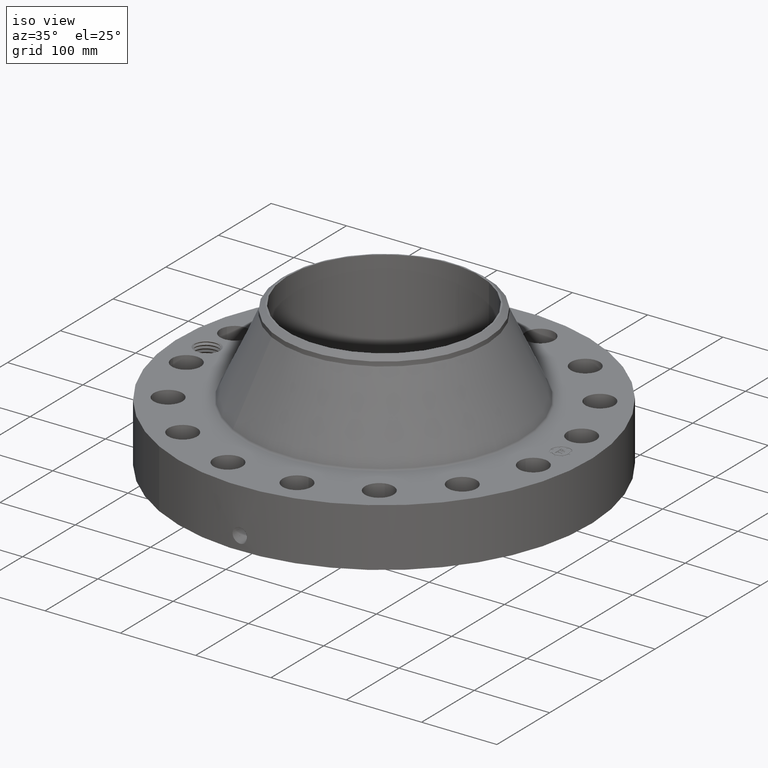
[diagram: clean part render]
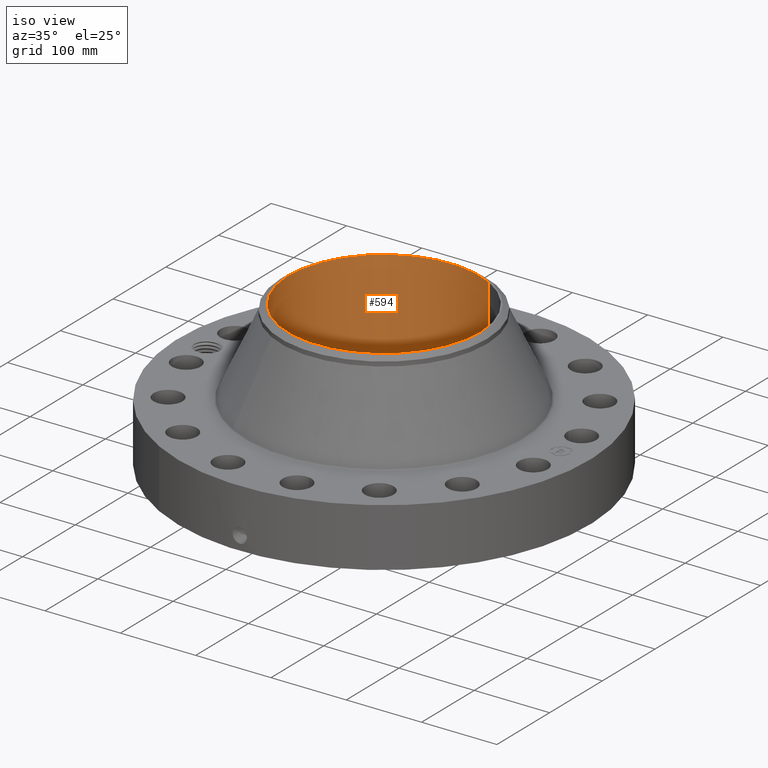
[diagram: same view with one face highlighted and labeled with its STEP entity id]
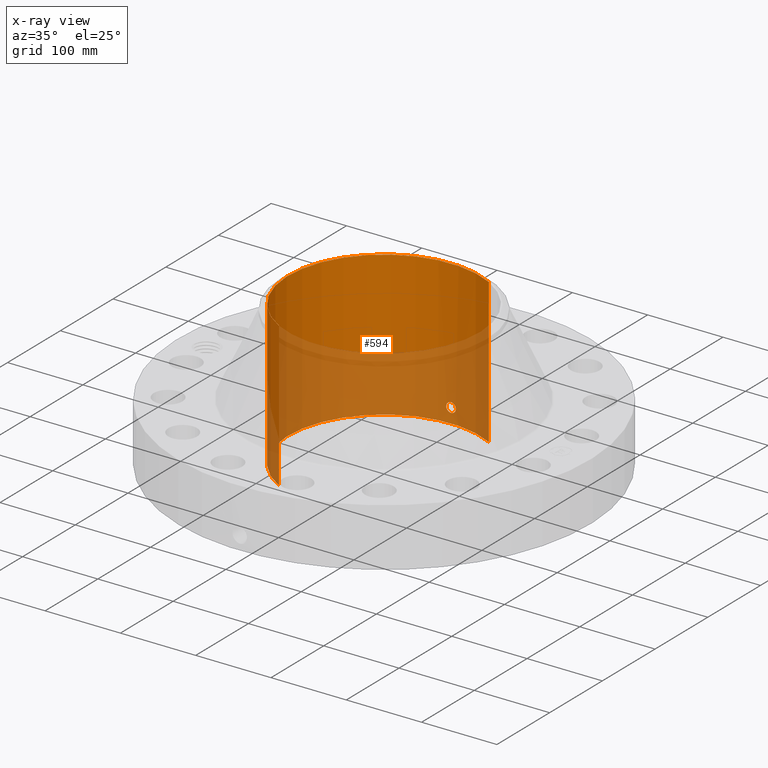
[diagram: x-ray of the same camera — body ghosted, the highlighted face saturated]
A machine part, iso view. The second image highlights one B-rep face of the part: STEP entity #594.
The next image is the same camera in x-ray: the body ghosted, the highlighted face saturated — about 47% of this face is hidden behind the body in this view.
In plain terms, the highlighted cylindrical surface (partial cylindrical patch) has radius 127.254 mm, axis along (0, 0, -1).
Its self-contained STEP definition (entity closure, byte-faithful):
#232=AXIS2_PLACEMENT_3D('Cylinder Axis2P3D',#229,#230,#231) ;
#533=AXIS2_PLACEMENT_3D('Circle Axis2P3D',#531,#532,$) ;
#543=AXIS2_PLACEMENT_3D('Circle Axis2P3D',#541,#542,$) ;
#229=CARTESIAN_POINT('Axis2P3D Location',(0.,0.,3.78100000002)) ;
#238=CARTESIAN_POINT('Vertex',(2.40192194842,4.39668863509,7.56200000003)) ;
#240=CARTESIAN_POINT('Vertex',(-2.40192194842,-4.39668863509,7.56200000003)) ;
#243=CARTESIAN_POINT('Line Origine',(2.40192194842,4.39668863509,3.78100000002)) ;
#247=CARTESIAN_POINT('Vertex',(2.40192194842,4.39668863509,-1.56655091349E-014)) ;
#254=CARTESIAN_POINT('Vertex',(-2.40192194842,-4.39668863509,-1.56655091349E-014)) ;
#257=CARTESIAN_POINT('Line Origine',(-2.40192194842,-4.39668863509,3.78100000002)) ;
#531=CARTESIAN_POINT('Axis2P3D Location',(0.,0.,7.56200000003)) ;
#541=CARTESIAN_POINT('Axis2P3D Location',(0.,0.,-1.67844740731E-014)) ;
#553=CARTESIAN_POINT('Control Point',(0.219395640473,5.0051938577,0.869856384655)) ;
#554=CARTESIAN_POINT('Control Point',(0.206921726763,5.00574063418,0.892689730543)) ;
#555=CARTESIAN_POINT('Control Point',(0.191478298922,5.00637864121,0.913898617343)) ;
#556=CARTESIAN_POINT('Control Point',(0.173345318071,5.00705858161,0.932970125844)) ;
#557=CARTESIAN_POINT('Control Point',(0.11213749517,5.00902515689,0.982448443455)) ;
#558=CARTESIAN_POINT('Control Point',(0.0349834941203,5.0103028337,1.00597315605)) ;
#559=CARTESIAN_POINT('Control Point',(-0.0195586093923,5.01039831415,1.00761228098)) ;
#560=CARTESIAN_POINT('Control Point',(-0.124143463879,5.00899203585,0.982470816184)) ;
#561=CARTESIAN_POINT('Control Point',(-0.203188052598,5.00608110487,0.909561361477)) ;
#562=CARTESIAN_POINT('Control Point',(-0.232165482161,5.00464790126,0.863347560047)) ;
#563=CARTESIAN_POINT('Control Point',(-0.255832985003,5.00346793306,0.785190939758)) ;
#564=CARTESIAN_POINT('Control Point',(-0.248296103086,5.00384337312,0.705801483576)) ;
#565=CARTESIAN_POINT('Control Point',(-0.242062009702,5.00415848896,0.679217645156)) ;
#566=CARTESIAN_POINT('Control Point',(-0.232323664138,5.00462717594,0.653808203936)) ;
#567=CARTESIAN_POINT('Control Point',(-0.219395640473,5.0051938577,0.630143615351)) ;
#568=CARTESIAN_POINT('Vertex',(0.219395640473,5.0051938577,0.869856384655)) ;
#570=CARTESIAN_POINT('Vertex',(-0.219395640473,5.0051938577,0.630143615351)) ;
#574=CARTESIAN_POINT('Control Point',(-0.219395640473,5.0051938577,0.630143615351)) ;
#575=CARTESIAN_POINT('Control Point',(-0.20692172675,5.00574063418,0.607310269439)) ;
#576=CARTESIAN_POINT('Control Point',(-0.19147829889,5.00637864121,0.586101382618)) ;
#577=CARTESIAN_POINT('Control Point',(-0.173345318116,5.00705858161,0.567029874198)) ;
#578=CARTESIAN_POINT('Control Point',(-0.112137495187,5.00902515689,0.517551556551)) ;
#579=CARTESIAN_POINT('Control Point',(-0.0349834940931,5.0103028337,0.494026843944)) ;
#580=CARTESIAN_POINT('Control Point',(0.0195586093617,5.01039831415,0.492387719018)) ;
#581=CARTESIAN_POINT('Control Point',(0.124143463825,5.00899203585,0.517529183802)) ;
#582=CARTESIAN_POINT('Control Point',(0.203188052536,5.00608110487,0.59043863847)) ;
#583=CARTESIAN_POINT('Control Point',(0.232165482185,5.00464790126,0.636652440037)) ;
#584=CARTESIAN_POINT('Control Point',(0.255832984993,5.00346793306,0.714809060267)) ;
#585=CARTESIAN_POINT('Control Point',(0.24829610309,5.00384337312,0.794198516388)) ;
#586=CARTESIAN_POINT('Control Point',(0.242062009687,5.00415848896,0.820782354889)) ;
#587=CARTESIAN_POINT('Control Point',(0.232323664129,5.00462717595,0.846191796088)) ;
#588=CARTESIAN_POINT('Control Point',(0.219395640473,5.0051938577,0.869856384655)) ;
#230=DIRECTION('Axis2P3D Direction',(0.,0.,-0.0393700787402)) ;
#231=DIRECTION('Axis2P3D XDirection',(-0.0188750212049,-0.0345504945626,0.)) ;
#244=DIRECTION('Vector Direction',(0.,0.,-0.0393700787402)) ;
#258=DIRECTION('Vector Direction',(0.,0.,-0.0393700787402)) ;
#532=DIRECTION('Axis2P3D Direction',(0.,0.,-0.0393700787402)) ;
#542=DIRECTION('Axis2P3D Direction',(0.,0.,-0.0393700787402)) ;
#245=VECTOR('Line Direction',#244,0.0393700787402) ;
#259=VECTOR('Line Direction',#258,0.0393700787402) ;
#547=ORIENTED_EDGE('',*,*,#535,.F.) ;
#548=ORIENTED_EDGE('',*,*,#261,.T.) ;
#549=ORIENTED_EDGE('',*,*,#545,.T.) ;
#550=ORIENTED_EDGE('',*,*,#249,.F.) ;
#591=ORIENTED_EDGE('',*,*,#572,.F.) ;
#592=ORIENTED_EDGE('',*,*,#589,.F.) ;
#593=FACE_BOUND('',#590,.T.) ;
#594=ADVANCED_FACE('PartBody',(#551,#593),#233,.F.) ;
#552=B_SPLINE_CURVE_WITH_KNOTS('',5,(#553,#554,#555,#556,#557,#558,#559,#560,#561,#562,#563,#564,#565,#566,#567),.UNSPECIFIED.,.F.,.U.,(6,3,3,3,6),(0.,4.67408027089,14.022098217,23.3720849081,28.2163239942),.UNSPECIFIED.) ;
#573=B_SPLINE_CURVE_WITH_KNOTS('',5,(#574,#575,#576,#577,#578,#579,#580,#581,#582,#583,#584,#585,#586,#587,#588),.UNSPECIFIED.,.F.,.U.,(6,3,3,3,6),(0.,4.67408027583,14.0220982246,23.3720849084,28.2163239909),.UNSPECIFIED.) ;
#534=CIRCLE('generated circle',#533,5.01000000002) ;
#544=CIRCLE('generated circle',#543,5.01000000002) ;
#233=CYLINDRICAL_SURFACE('generated cylinder',#232,5.01000000002) ;
#249=EDGE_CURVE('',#239,#248,#246,.T.) ;
#261=EDGE_CURVE('',#241,#255,#260,.T.) ;
#535=EDGE_CURVE('',#241,#239,#534,.T.) ;
#545=EDGE_CURVE('',#255,#248,#544,.T.) ;
#572=EDGE_CURVE('',#569,#571,#552,.T.) ;
#589=EDGE_CURVE('',#571,#569,#573,.T.) ;
#546=EDGE_LOOP('',(#547,#548,#549,#550)) ;
#590=EDGE_LOOP('',(#591,#592)) ;
#551=FACE_OUTER_BOUND('',#546,.T.) ;
#246=LINE('Line',#243,#245) ;
#260=LINE('Line',#257,#259) ;
#239=VERTEX_POINT('',#238) ;
#241=VERTEX_POINT('',#240) ;
#248=VERTEX_POINT('',#247) ;
#255=VERTEX_POINT('',#254) ;
#569=VERTEX_POINT('',#568) ;
#571=VERTEX_POINT('',#570) ;